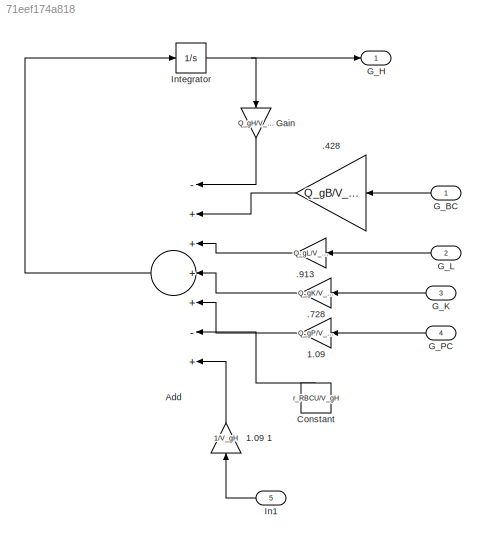
MODEL slx_71eef174a818
KIND model
CONFIG AbsTol = auto
CONFIG EnableMultiTasking = off
CONFIG FixedStep = auto
CONFIG MaxStep = auto
CONFIG MinStep = auto
CONFIG RelTol = 1e-3
CONFIG SampleTimeConstraint = Unconstrained
CONFIG Solver = VariableStepAuto
CONFIG SolverName = VariableStepAuto
CONFIG StartTime = 0.0
CONFIG StopTime = 10.0
BLOCK [Gain] .428 
  Gain = Q_gB/V_gH
  OutDataTypeStr = Inherit: Inherit via internal rule
  ParamDataTypeStr = Inherit: Inherit via internal rule
  SaturateOnIntegerOverflow = off
BLOCK [Gain] .728
  Gain = Q_gK/V_gH
  OutDataTypeStr = Inherit: Inherit via internal rule
  ParamDataTypeStr = Inherit: Inherit via internal rule
  SaturateOnIntegerOverflow = off
BLOCK [Gain] .913
  Gain = Q_gL/V_gH
  OutDataTypeStr = Inherit: Inherit via internal rule
  ParamDataTypeStr = Inherit: Inherit via internal rule
  SaturateOnIntegerOverflow = off
BLOCK [Gain] 1.09 
  Gain = Q_gP/V_gH
  OutDataTypeStr = Inherit: Inherit via internal rule
  ParamDataTypeStr = Inherit: Inherit via internal rule
  SaturateOnIntegerOverflow = off
BLOCK [Gain] 1.09 1
  Gain = 1/V_gH
  OutDataTypeStr = Inherit: Inherit via internal rule
  ParamDataTypeStr = Inherit: Inherit via internal rule
  SaturateOnIntegerOverflow = off
BLOCK [Sum] Add
  InputSameDT = off
  Inputs = -++++-+
  OutDataTypeStr = Inherit: Inherit via internal rule
  Ports = [7, 1]
  SaturateOnIntegerOverflow = off
BLOCK [Constant] Constant
  Value = r_RBCU/V_gH
BLOCK [Inport] G_BC
  IconDisplay = Port number
BLOCK [Outport] G_H
  IconDisplay = Port number
BLOCK [Inport] G_K
  IconDisplay = Port number
  Port = 3
BLOCK [Inport] G_L
  IconDisplay = Port number
  Port = 2
BLOCK [Inport] G_PC
  IconDisplay = Port number
  Port = 4
BLOCK [Gain] Gain
  Gain = Q_gH/V_gH
  OutDataTypeStr = Inherit: Inherit via internal rule
  ParamDataTypeStr = Inherit: Inherit via internal rule
  SaturateOnIntegerOverflow = off
BLOCK [Inport] In1
  IconDisplay = Port number
  Port = 5
BLOCK [Integrator] Integrator
  InitialCondition = GHC_B
  LimitOutput = on
  LowerSaturationLimit = 0
  Ports = [1, 1]
LINE .428 :1 -> Add:2
LINE .728:1 -> Add:4
LINE .913:1 -> Add:3
LINE 1.09 1:1 -> Add:7
LINE 1.09 :1 -> Add:5
LINE Add:1 -> Integrator:1
LINE Constant:1 -> Add:6
LINE G_BC:1 -> .428 :1
LINE G_K:1 -> .728:1
LINE G_L:1 -> .913:1
LINE G_PC:1 -> 1.09 :1
LINE Gain:1 -> Add:1
LINE In1:1 -> 1.09 1:1
NET Integrator:1 -> G_H:1, Gain:1
note: NET lines group one-source signal fan-out (src -> all destinations, sorted); 1:1 wires keep LINE
